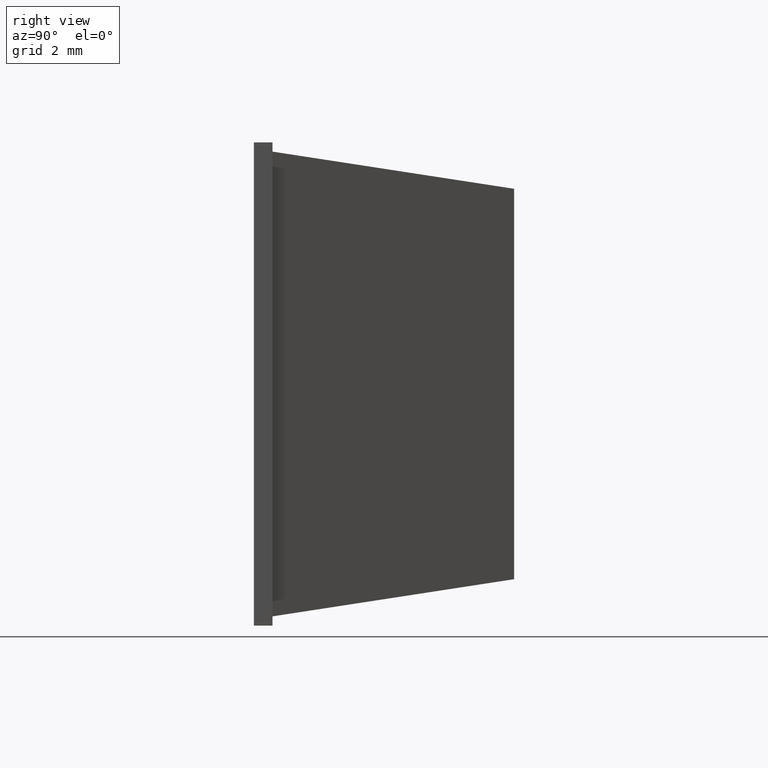
[diagram: clean part render]
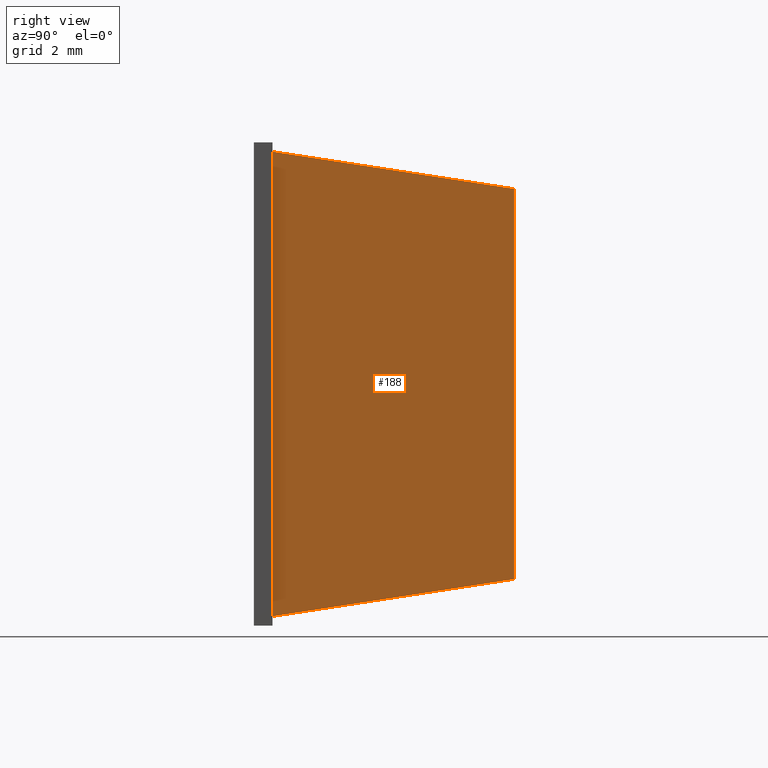
[diagram: same view with one face highlighted and labeled with its STEP entity id]
A machine part, right view. The second image highlights one B-rep face of the part: STEP entity #188.
In plain terms, the highlighted planar face has unit normal (0.9884, 0.1521, -0).
Its self-contained STEP definition (entity closure, byte-faithful):
#18=FACE_OUTER_BOUND('',#29,.T.);
#29=EDGE_LOOP('',(#135,#136,#137,#138));
#42=LINE('',#267,#66);
#43=LINE('',#270,#67);
#46=LINE('',#276,#70);
#47=LINE('',#277,#71);
#66=VECTOR('',#217,10.5);
#67=VECTOR('',#220,6.65206734782504);
#70=VECTOR('',#225,6.65206734782504);
#71=VECTOR('',#226,12.5);
#88=VERTEX_POINT('',#261);
#90=VERTEX_POINT('',#265);
#91=VERTEX_POINT('',#269);
#93=VERTEX_POINT('',#275);
#106=EDGE_CURVE('',#88,#90,#42,.T.);
#107=EDGE_CURVE('',#88,#91,#43,.T.);
#110=EDGE_CURVE('',#90,#93,#46,.T.);
#111=EDGE_CURVE('',#91,#93,#47,.T.);
#135=ORIENTED_EDGE('',*,*,#106,.T.);
#136=ORIENTED_EDGE('',*,*,#110,.T.);
#137=ORIENTED_EDGE('',*,*,#111,.F.);
#138=ORIENTED_EDGE('',*,*,#107,.F.);
#177=PLANE('',#201);
#188=ADVANCED_FACE('',(#18),#177,.T.);
#201=AXIS2_PLACEMENT_3D('',#274,#223,#224);
#217=DIRECTION('',(0.,0.,1.));
#220=DIRECTION('',(0.150329205600566,-0.977139836403678,-0.150329205600566));
#223=DIRECTION('center_axis',(0.988371697650617,0.152057184253941,-1.61615729536989E-17));
#224=DIRECTION('ref_axis',(0.,0.,-1.));
#225=DIRECTION('',(0.150329205600566,-0.977139836403678,0.150329205600566));
#226=DIRECTION('',(1.63517156471754E-17,0.,1.));
#261=CARTESIAN_POINT('',(5.25,7.,-5.25));
#265=CARTESIAN_POINT('',(5.25,7.,5.25));
#267=CARTESIAN_POINT('',(5.25,7.,-5.25));
#269=CARTESIAN_POINT('',(6.25,0.5,-6.25));
#270=CARTESIAN_POINT('',(5.25,7.,-5.25));
#274=CARTESIAN_POINT('Origin',(5.25,7.,-5.25));
#275=CARTESIAN_POINT('',(6.25,0.5,6.25));
#276=CARTESIAN_POINT('',(5.25,7.,5.25));
#277=CARTESIAN_POINT('',(6.25,0.5,-2.625));